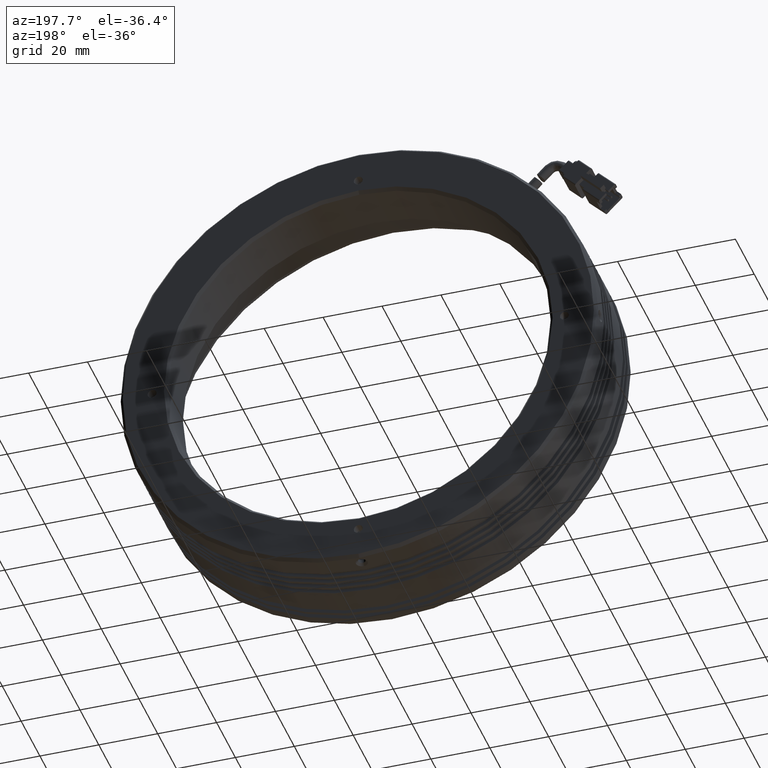
[diagram: clean part render]
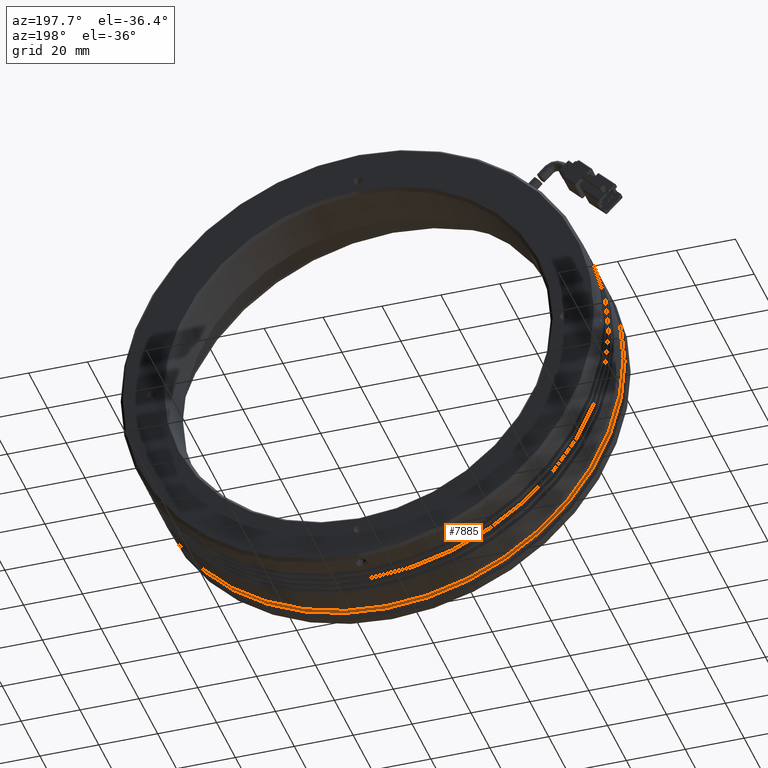
[diagram: same view with one face highlighted and labeled with its STEP entity id]
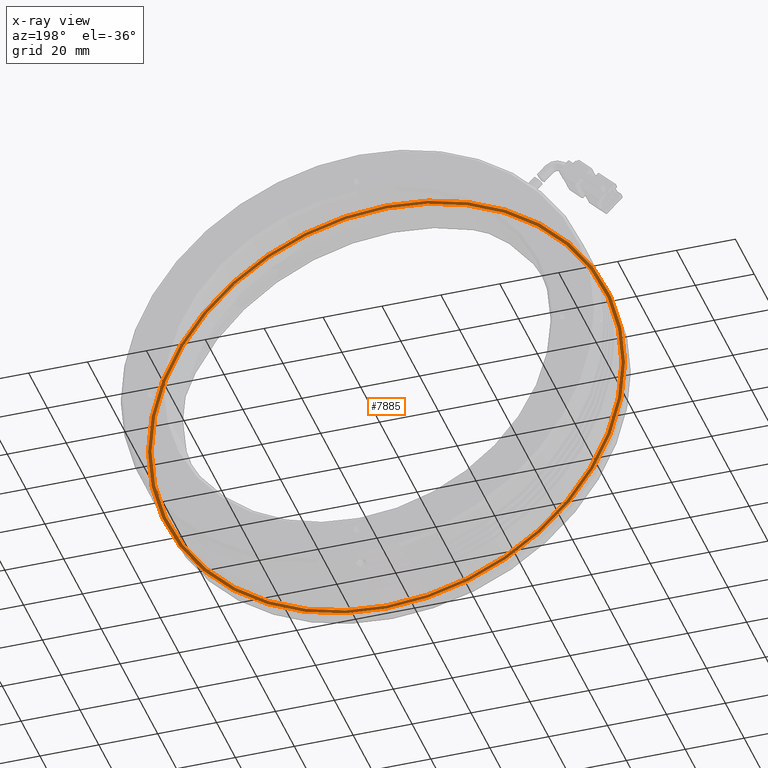
[diagram: x-ray of the same camera — body ghosted, the highlighted face saturated]
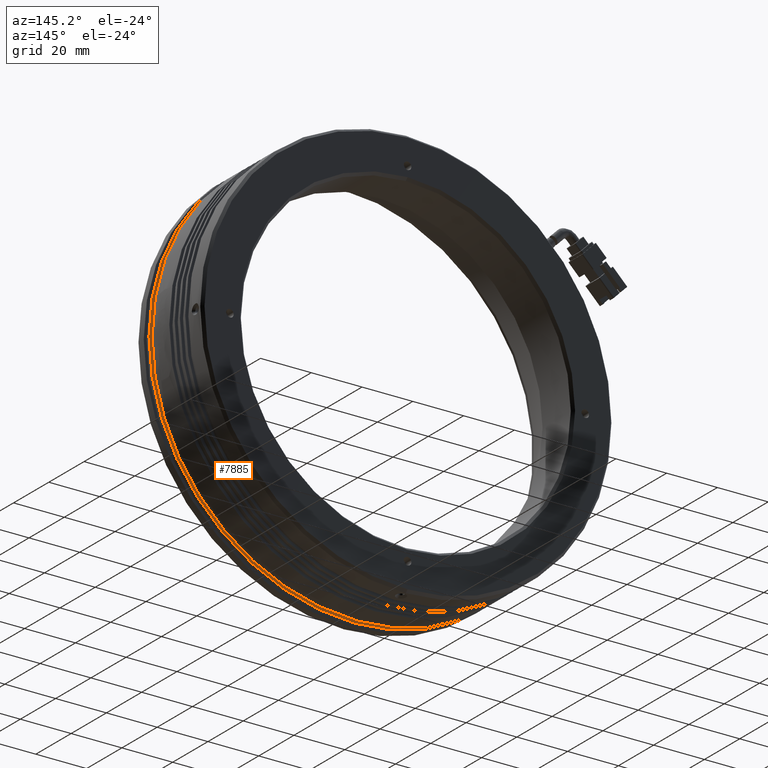
[diagram: same view with one face highlighted and labeled with its STEP entity id]
A machine part, auxiliary view. The second image highlights one B-rep face of the part: STEP entity #7885.
The next image is the same camera in x-ray: the body ghosted, the highlighted face saturated — about 48% of this face is hidden behind the body in this view.
A second angle (auxiliary view) of the same face is appended — the face is thin or edge-on in the first view.
In plain terms, the highlighted planar face has unit normal (0, 1, 0).
Its self-contained STEP definition (entity closure, byte-faithful):
#21 = DIRECTION ( 'NONE',  ( 0.0000000000000000000, -0.0000000000000000000, 1.000000000000000000 ) ) ;
#484 = CARTESIAN_POINT ( 'NONE',  ( -9.785022266880025300, -2.128885628159951500, 79.79999999999991200 ) ) ;
#546 = VERTEX_POINT ( 'NONE', #12844 ) ;
#1340 = FACE_OUTER_BOUND ( 'NONE', #3432, .T. ) ;
#2040 = PLANE ( 'NONE',  #11209 ) ;
#2834 = DIRECTION ( 'NONE',  ( -0.0000000000000000000, -1.000000000000000000, -0.0000000000000000000 ) ) ;
#3327 = CARTESIAN_POINT ( 'NONE',  ( -9.785022266880036000, -2.128885628159951500, 0.0000000000000000000 ) ) ;
#3432 = EDGE_LOOP ( 'NONE', ( #4038, #9758 ) ) ;
#3537 = VERTEX_POINT ( 'NONE', #8522 ) ;
#3991 = DIRECTION ( 'NONE',  ( -0.0000000000000000000, -1.000000000000000000, -0.0000000000000000000 ) ) ;
#4038 = ORIENTED_EDGE ( 'NONE', *, *, #7255, .F. ) ;
#4072 = DIRECTION ( 'NONE',  ( -0.0000000000000000000, -1.000000000000000000, -0.0000000000000000000 ) ) ;
#4357 = DIRECTION ( 'NONE',  ( 0.0000000000000000000, 0.0000000000000000000, -1.000000000000000000 ) ) ;
#5017 = AXIS2_PLACEMENT_3D ( 'NONE', #10254, #4072, #11301 ) ;
#5103 = AXIS2_PLACEMENT_3D ( 'NONE', #10174, #3991, #11214 ) ;
#5518 = EDGE_LOOP ( 'NONE', ( #7791, #9565 ) ) ;
#5575 = CIRCLE ( 'NONE', #12906, 81.00000000000001400 ) ;
#6203 = DIRECTION ( 'NONE',  ( 0.0000000000000000000, 1.000000000000000000, 0.0000000000000000000 ) ) ;
#6524 = VERTEX_POINT ( 'NONE', #7843 ) ;
#7255 = EDGE_CURVE ( 'NONE', #3537, #6524, #5575, .T. ) ;
#7386 = VERTEX_POINT ( 'NONE', #484 ) ;
#7706 = EDGE_CURVE ( 'NONE', #546, #7386, #8004, .T. ) ;
#7791 = ORIENTED_EDGE ( 'NONE', *, *, #7706, .T. ) ;
#7843 = CARTESIAN_POINT ( 'NONE',  ( -9.785022266880025300, -2.128885628159951500, 81.00000000000001400 ) ) ;
#7885 = ADVANCED_FACE ( 'NONE', ( #1340, #11999 ), #2040, .T. ) ;
#8004 = CIRCLE ( 'NONE', #12026, 79.79999999999991200 ) ;
#8522 = CARTESIAN_POINT ( 'NONE',  ( -9.785022266880036000, -2.128885628159951500, -81.00000000000001400 ) ) ;
#9013 = CARTESIAN_POINT ( 'NONE',  ( -9.785022266880036000, -2.128885628159951500, 0.0000000000000000000 ) ) ;
#9093 = CIRCLE ( 'NONE', #5103, 79.79999999999991200 ) ;
#9565 = ORIENTED_EDGE ( 'NONE', *, *, #12687, .T. ) ;
#9758 = ORIENTED_EDGE ( 'NONE', *, *, #12763, .F. ) ;
#10052 = DIRECTION ( 'NONE',  ( 0.0000000000000000000, 0.0000000000000000000, -1.000000000000000000 ) ) ;
#10174 = CARTESIAN_POINT ( 'NONE',  ( -9.785022266880036000, -2.128885628159951500, 0.0000000000000000000 ) ) ;
#10217 = CIRCLE ( 'NONE', #5017, 81.00000000000001400 ) ;
#10254 = CARTESIAN_POINT ( 'NONE',  ( -9.785022266880036000, -2.128885628159951500, 0.0000000000000000000 ) ) ;
#10533 = DIRECTION ( 'NONE',  ( -0.0000000000000000000, -1.000000000000000000, -0.0000000000000000000 ) ) ;
#11209 = AXIS2_PLACEMENT_3D ( 'NONE', #12377, #6203, #21 ) ;
#11214 = DIRECTION ( 'NONE',  ( 0.0000000000000000000, 0.0000000000000000000, -1.000000000000000000 ) ) ;
#11301 = DIRECTION ( 'NONE',  ( 0.0000000000000000000, 0.0000000000000000000, -1.000000000000000000 ) ) ;
#11999 = FACE_BOUND ( 'NONE', #5518, .T. ) ;
#12026 = AXIS2_PLACEMENT_3D ( 'NONE', #9013, #2834, #10052 ) ;
#12377 = CARTESIAN_POINT ( 'NONE',  ( -9.785022266880036000, -2.128885628159951500, 0.0000000000000000000 ) ) ;
#12687 = EDGE_CURVE ( 'NONE', #7386, #546, #9093, .T. ) ;
#12763 = EDGE_CURVE ( 'NONE', #6524, #3537, #10217, .T. ) ;
#12844 = CARTESIAN_POINT ( 'NONE',  ( -9.785022266880036000, -2.128885628159951500, -79.79999999999991200 ) ) ;
#12906 = AXIS2_PLACEMENT_3D ( 'NONE', #3327, #10533, #4357 ) ;